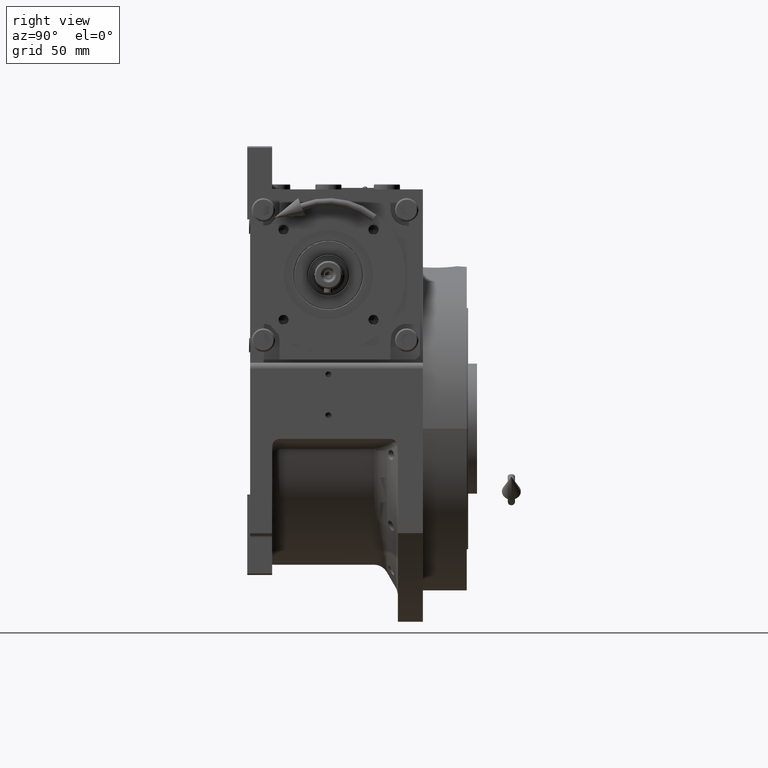
[diagram: clean part render]
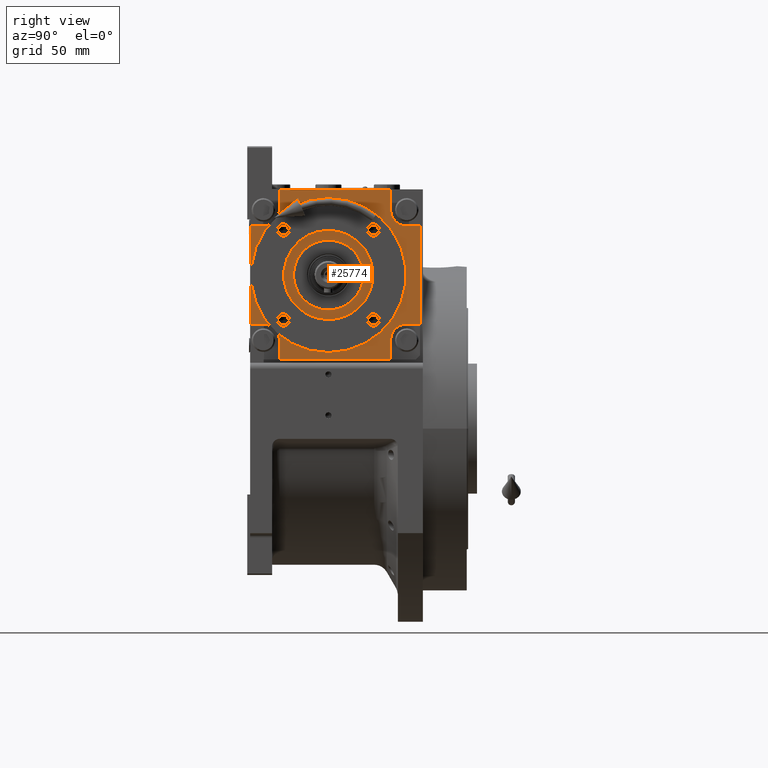
[diagram: same view with one face highlighted and labeled with its STEP entity id]
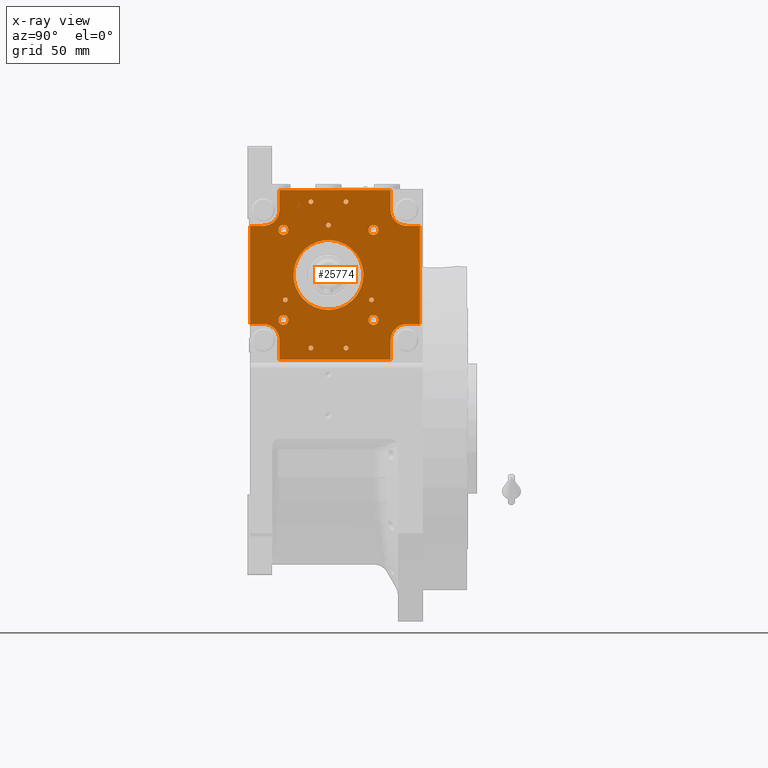
[diagram: x-ray of the same camera — body ghosted, the highlighted face saturated]
A machine part, right view. The second image highlights one B-rep face of the part: STEP entity #25774.
The next image is the same camera in x-ray: the body ghosted, the highlighted face saturated — about 0% of this face is hidden behind the body in this view.
In plain terms, the highlighted planar face has unit normal (-1, 0, 0).
Its self-contained STEP definition (entity closure, byte-faithful):
#506 = ORIENTED_EDGE ( 'NONE', *, *, #31079, .F. ) ;
#508 = EDGE_CURVE ( 'NONE', #3402, #8271, #52353, .T. ) ;
#667 = CARTESIAN_POINT ( 'NONE',  ( 30.75914498161629496, -16.00000000000052935, 30.75914498161568034 ) ) ;
#764 = EDGE_CURVE ( 'NONE', #5807, #63217, #19924, .T. ) ;
#860 = CIRCLE ( 'NONE', #40134, 1.649999999999998579 ) ;
#929 = EDGE_LOOP ( 'NONE', ( #28091, #64346 ) ) ;
#1064 = EDGE_CURVE ( 'NONE', #11696, #58567, #54721, .T. ) ;
#1093 = ORIENTED_EDGE ( 'NONE', *, *, #45163, .F. ) ;
#1099 = EDGE_LOOP ( 'NONE', ( #65953, #33694 ) ) ;
#1154 = FACE_BOUND ( 'NONE', #68655, .T. ) ;
#1180 = CARTESIAN_POINT ( 'NONE',  ( -14.56080651967272743, -15.99999999999968736, 18.97164043556306012 ) ) ;
#1211 = DIRECTION ( 'NONE',  ( 2.320366121466569596E-14, -1.000000000000000000, -1.221245327087611452E-15 ) ) ;
#1273 = CARTESIAN_POINT ( 'NONE',  ( -10.34999999999789466, -15.99999999999997335, 49.99999999999958789 ) ) ;
#1508 = DIRECTION ( 'NONE',  ( -1.000000000000000000, 2.312964634635742267E-14, -3.364312195833806761E-14 ) ) ;
#1527 = CARTESIAN_POINT ( 'NONE',  ( 1.566381472650238749, -16.00000000000006040, 23.86395783780504942 ) ) ;
#1547 = CARTESIAN_POINT ( 'NONE',  ( 53.49999999999916866, -16.00000000000105516, -33.49999999999730704 ) ) ;
#1860 = CARTESIAN_POINT ( 'NONE',  ( -23.63839498590282417, -15.99999999999945288, 3.312268357112897466 ) ) ;
#2015 = CIRCLE ( 'NONE', #41287, 1.650000000000000355 ) ;
#2060 = VERTEX_POINT ( 'NONE', #45829 ) ;
#2219 = CARTESIAN_POINT ( 'NONE',  ( -7.684686402434363295, -15.99999999999985434, 22.64704931693656320 ) ) ;
#2410 = AXIS2_PLACEMENT_3D ( 'NONE', #41151, #62232, #51336 ) ;
#2427 = DIRECTION ( 'NONE',  ( -1.000000000000000000, 2.346978820439211900E-14, -3.265361837132816584E-14 ) ) ;
#2507 = EDGE_LOOP ( 'NONE', ( #20204, #43611, #4186 ) ) ;
#2560 = CARTESIAN_POINT ( 'NONE',  ( 17.98238473184901309, -16.00000000000043698, 15.76636065876123638 ) ) ;
#2581 = VECTOR ( 'NONE', #41155, 1000.000000000000000 ) ;
#2713 = ORIENTED_EDGE ( 'NONE', *, *, #8965, .T. ) ;
#2714 = CARTESIAN_POINT ( 'NONE',  ( 23.54567843359673418, -16.00000000000054712, -3.888439885455164280 ) ) ;
#2945 = VERTEX_POINT ( 'NONE', #19310 ) ;
#3003 = EDGE_LOOP ( 'NONE', ( #42315, #55996 ) ) ;
#3139 = CARTESIAN_POINT ( 'NONE',  ( 31.09486372867084825, -16.00000000000052935, -16.99999999999864286 ) ) ;
#3162 = EDGE_CURVE ( 'NONE', #8480, #41226, #19487, .T. ) ;
#3219 = B_SPLINE_CURVE_WITH_KNOTS ( 'NONE', 3,
 ( #43328, #5071, #42993, #22248, #64092, #11716, #20870, #15963, #43692, #16999, #64422, #58808, #42305, #15627, #26506, #32101, #37036, #16286, #58478, #53886, #37701, #59140 ),
 .UNSPECIFIED., .F., .F.,
 ( 4, 2, 2, 2, 2, 2, 2, 1, 1, 2, 2, 4 ),
 ( 0.5000001158929844314, 0.5625001014063614191, 0.6250000869197384068, 0.6875000724331152835, 0.7500000579464922712, 0.8125000434598691479, 0.8750000289732461356, 0.9062500217299345184, 0.9218750181082788764, 0.9296875162974509443, 0.9375000144866230123, 1.000000000000000000 ),
 .UNSPECIFIED. ) ;
#3402 = VERTEX_POINT ( 'NONE', #33506 ) ;
#3639 = VECTOR ( 'NONE', #32745, 1000.000000000000000 ) ;
#3668 = CIRCLE ( 'NONE', #59601, 1.649999999999998579 ) ;
#3751 = CARTESIAN_POINT ( 'NONE',  ( 42.50000000000225242, -16.00000000000063949, 58.00000000000208900 ) ) ;
#3772 = CARTESIAN_POINT ( 'NONE',  ( 3.118976708678669052, -16.00000000000004619, -23.71104291446139456 ) ) ;
#3849 = CARTESIAN_POINT ( 'NONE',  ( -11.99999999999789502, -15.99999999999998579, 49.99999999999958789 ) ) ;
#4032 = CARTESIAN_POINT ( 'NONE',  ( -7.443936863012387801E-10, -16.00000080169985139, -23.86393912775695725 ) ) ;
#4035 = VECTOR ( 'NONE', #67765, 1000.000000000000000 ) ;
#4047 = ORIENTED_EDGE ( 'NONE', *, *, #22902, .F. ) ;
#4075 = LINE ( 'NONE', #14622, #4808 ) ;
#4186 = ORIENTED_EDGE ( 'NONE', *, *, #18012, .T. ) ;
#4375 = CIRCLE ( 'NONE', #36844, 1.650000000000000355 ) ;
#4605 = CARTESIAN_POINT ( 'NONE',  ( -53.50000000000083134, -15.99999999999893241, -33.50000000000168399 ) ) ;
#4719 = AXIS2_PLACEMENT_3D ( 'NONE', #3849, #46671, #14729 ) ;
#4808 = VECTOR ( 'NONE', #52543, 1000.000000000000000 ) ;
#4926 = EDGE_CURVE ( 'NONE', #51191, #34077, #62412, .T. ) ;
#5051 = VERTEX_POINT ( 'NONE', #5088 ) ;
#5071 = CARTESIAN_POINT ( 'NONE',  ( -1.566389769414687105, -15.99999999999994138, -23.86395727102645736 ) ) ;
#5088 = CARTESIAN_POINT ( 'NONE',  ( -27.35914498161529451, -15.99999999999905675, -30.75914498161485966 ) ) ;
#5124 = CARTESIAN_POINT ( 'NONE',  ( -53.50000000000083134, -15.99999999999893241, -33.50000000000168399 ) ) ;
#5341 = DIRECTION ( 'NONE',  ( -1.000000000000000000, 2.312964634635742267E-14, -3.364312195833806761E-14 ) ) ;
#5620 = CARTESIAN_POINT ( 'NONE',  ( -27.35914498161335828, -15.99999999999947242, 30.75914498161398569 ) ) ;
#5742 = CARTESIAN_POINT ( 'NONE',  ( -30.75914498161336041, -15.99999999999947242, 30.75914498161395727 ) ) ;
#5807 = VERTEX_POINT ( 'NONE', #5620 ) ;
#5922 = AXIS2_PLACEMENT_3D ( 'NONE', #5742, #21530, #17305 ) ;
#6074 = FACE_BOUND ( 'NONE', #3003, .T. ) ;
#6216 = CARTESIAN_POINT ( 'NONE',  ( -34.15914498161563273, -15.99999999999852918, -30.75914498161649746 ) ) ;
#6446 = AXIS2_PLACEMENT_3D ( 'NONE', #12814, #28969, #50393 ) ;
#6450 = CARTESIAN_POINT ( 'NONE',  ( -17.98191327638511083, -15.99999999999960743, 15.76671743174190610 ) ) ;
#6784 = FACE_BOUND ( 'NONE', #29132, .T. ) ;
#6807 = CARTESIAN_POINT ( 'NONE',  ( 21.44851027164581936, -16.00000000000050449, 10.57829038497925112 ) ) ;
#6872 = CIRCLE ( 'NONE', #2410, 10.99999999999999645 ) ;
#6941 = AXIS2_PLACEMENT_3D ( 'NONE', #67993, #46908, #19846 ) ;
#7144 = CARTESIAN_POINT ( 'NONE',  ( 18.97154522141289945, -16.00000000000045830, 14.56102996679602413 ) ) ;
#7442 = DIRECTION ( 'NONE',  ( -1.000000000000000000, 2.346978820439209376E-14, -3.265361837132812797E-14 ) ) ;
#7477 = CARTESIAN_POINT ( 'NONE',  ( -10.58016068106818786, -15.99999999999978151, 21.44772903399613284 ) ) ;
#7688 = CARTESIAN_POINT ( 'NONE',  ( -30.75914498161529309, -15.99999999999905675, -30.75914498161649746 ) ) ;
#7826 = CARTESIAN_POINT ( 'NONE',  ( -20.71237213299974655, -15.99999999999953459, 11.95537536735847794 ) ) ;
#8153 = DIRECTION ( 'NONE',  ( 2.320366121466569596E-14, -1.000000000000000000, -1.221245327087611452E-15 ) ) ;
#8271 = VERTEX_POINT ( 'NONE', #27807 ) ;
#8285 = CARTESIAN_POINT ( 'NONE',  ( 1.507460822836030482E-12, -15.99999999999998579, 34.00000000000001421 ) ) ;
#8459 = CARTESIAN_POINT ( 'NONE',  ( 30.75914498161435873, -16.00000000000011013, -30.75914498161424859 ) ) ;
#8480 = VERTEX_POINT ( 'NONE', #33897 ) ;
#8756 = AXIS2_PLACEMENT_3D ( 'NONE', #10390, #14626, #36048 ) ;
#8844 = ORIENTED_EDGE ( 'NONE', *, *, #49577, .F. ) ;
#8876 = CARTESIAN_POINT ( 'NONE',  ( -30.75914498161529309, -15.99999999999905675, -30.75914498161649746 ) ) ;
#8965 = EDGE_CURVE ( 'NONE', #17217, #28967, #6872, .T. ) ;
#9039 = CARTESIAN_POINT ( 'NONE',  ( -7.443936863012387801E-10, -16.00000080169985139, -23.86393912775695725 ) ) ;
#9354 = ORIENTED_EDGE ( 'NONE', *, *, #16498, .F. ) ;
#9511 = DIRECTION ( 'NONE',  ( 1.000000000000000000, -2.346978820439211900E-14, 3.367404394543216964E-14 ) ) ;
#9522 = CARTESIAN_POINT ( 'NONE',  ( -13.65000000000131486, -15.99999999999947242, -49.99999999999977973 ) ) ;
#9662 = VERTEX_POINT ( 'NONE', #21024 ) ;
#10390 = CARTESIAN_POINT ( 'NONE',  ( 30.75914498161629496, -16.00000000000052935, 30.75914498161568034 ) ) ;
#10786 = VERTEX_POINT ( 'NONE', #50225 ) ;
#10951 = EDGE_CURVE ( 'NONE', #31329, #36345, #67785, .T. ) ;
#11004 = FACE_BOUND ( 'NONE', #1099, .T. ) ;
#11696 = VERTEX_POINT ( 'NONE', #37450 ) ;
#11707 = CARTESIAN_POINT ( 'NONE',  ( -11.95559462097993375, -15.99999999999974776, 20.71256030924635283 ) ) ;
#11716 = CARTESIAN_POINT ( 'NONE',  ( -10.57970342709663925, -15.99999999999972999, -21.44798703624194047 ) ) ;
#11937 = CARTESIAN_POINT ( 'NONE',  ( -27.79486372867094701, -15.99999999999947242, -17.00000000000084910 ) ) ;
#11977 = DIRECTION ( 'NONE',  ( 1.000000000000000000, -2.312964634635742267E-14, 3.364312195833806761E-14 ) ) ;
#11996 = VERTEX_POINT ( 'NONE', #4032 ) ;
#12031 = FACE_BOUND ( 'NONE', #40337, .T. ) ;
#12115 = DIRECTION ( 'NONE',  ( 2.320366121466569596E-14, -1.000000000000000000, -1.221245327087611452E-15 ) ) ;
#12168 = VECTOR ( 'NONE', #57906, 1000.000000000000000 ) ;
#12194 = VERTEX_POINT ( 'NONE', #42987 ) ;
#12410 = EDGE_LOOP ( 'NONE', ( #68583, #506 ) ) ;
#12420 = CARTESIAN_POINT ( 'NONE',  ( -23.47914610411905301, -15.99999999999945999, 4.271807850601716972 ) ) ;
#12744 = DIRECTION ( 'NONE',  ( 2.320366121466569596E-14, -1.000000000000000000, -1.221245327087611452E-15 ) ) ;
#12759 = CARTESIAN_POINT ( 'NONE',  ( 23.36750599776914683, -16.00000000000055067, 4.844962327507791322 ) ) ;
#12814 = CARTESIAN_POINT ( 'NONE',  ( -30.75914498161336041, -15.99999999999947242, 30.75914498161395727 ) ) ;
#13021 = AXIS2_PLACEMENT_3D ( 'NONE', #8285, #13203, #29698 ) ;
#13146 = CIRCLE ( 'NONE', #18752, 1.649999999999998579 ) ;
#13203 = DIRECTION ( 'NONE',  ( 2.320366121466569596E-14, -1.000000000000000000, -1.221245327087611452E-15 ) ) ;
#13651 = ORIENTED_EDGE ( 'NONE', *, *, #23307, .F. ) ;
#13687 = CARTESIAN_POINT ( 'NONE',  ( 42.49999999999828049, -16.00000000000052935, -57.99999999999759837 ) ) ;
#13822 = B_SPLINE_CURVE_WITH_KNOTS ( 'NONE', 3,
 ( #25199, #57502, #36071, #18870, #2714, #45909, #41692, #30796, #62413, #24127, #19219, #57161, #41351, #66982, #40651, #40303, #67697, #35026, #52208, #3772, #62079, #9039 ),
 .UNSPECIFIED., .F., .F.,
 ( 4, 1, 1, 2, 2, 2, 2, 2, 2, 2, 2, 4 ),
 ( 0.000000000000000000, 0.03125000724331147145, 0.04687501086496721064, 0.05468751267579508718, 0.06250001448662295678, 0.1250000289732460246, 0.1875000434598690924, 0.2500000579464921602, 0.3125000724331152280, 0.3750000869197382403, 0.4375001014063613081, 0.5000001158929844314 ),
 .UNSPECIFIED. ) ;
#14152 = ORIENTED_EDGE ( 'NONE', *, *, #52336, .T. ) ;
#14472 = CARTESIAN_POINT ( 'NONE',  ( -33.49999999999775468, -15.99999999999852918, 57.99999999999892708 ) ) ;
#14622 = CARTESIAN_POINT ( 'NONE',  ( 62.50000000000094502, -16.00000000000157030, 33.50000000000126477 ) ) ;
#14626 = DIRECTION ( 'NONE',  ( 2.320366121466569596E-14, -1.000000000000000000, -1.221245327087611452E-15 ) ) ;
#14729 = DIRECTION ( 'NONE',  ( 1.000000000000000000, -2.312964634635742267E-14, 3.364312195833806761E-14 ) ) ;
#15053 = EDGE_CURVE ( 'NONE', #9662, #41793, #54795, .T. ) ;
#15107 = CARTESIAN_POINT ( 'NONE',  ( 10.34999999999868514, -16.00000000000000000, -49.99999999999943157 ) ) ;
#15627 = CARTESIAN_POINT ( 'NONE',  ( -22.34692774506246238, -15.99999999999947597, -8.409641594889036398 ) ) ;
#15651 = EDGE_CURVE ( 'NONE', #56420, #31560, #52275, .T. ) ;
#15834 = EDGE_LOOP ( 'NONE', ( #45658, #65211 ) ) ;
#15963 = CARTESIAN_POINT ( 'NONE',  ( -14.56100406771642319, -15.99999999999963940, -18.97158716134886802 ) ) ;
#15977 = ORIENTED_EDGE ( 'NONE', *, *, #15651, .F. ) ;
#16286 = CARTESIAN_POINT ( 'NONE',  ( -23.32660352079502530, -15.99999999999944933, -5.038296638456548848 ) ) ;
#16498 = EDGE_CURVE ( 'NONE', #51337, #19336, #13146, .T. ) ;
#16930 = CARTESIAN_POINT ( 'NONE',  ( 42.49999999999828049, -16.00000000000052935, -57.99999999999759837 ) ) ;
#16961 = DIRECTION ( 'NONE',  ( 2.320366121466574330E-14, 1.000000000000000000, 1.221245327089162353E-15 ) ) ;
#16999 = CARTESIAN_POINT ( 'NONE',  ( -17.98238733659842836, -15.99999999999956302, -15.76635765307155346 ) ) ;
#17037 = VERTEX_POINT ( 'NONE', #66644 ) ;
#17217 = VERTEX_POINT ( 'NONE', #41358 ) ;
#17305 = DIRECTION ( 'NONE',  ( -1.000000000000000000, 2.346978820439211900E-14, -3.367404394543216964E-14 ) ) ;
#17327 = CARTESIAN_POINT ( 'NONE',  ( 20.71289917946465664, -16.00000000000049383, 11.95468967782841574 ) ) ;
#17640 = B_SPLINE_CURVE_WITH_KNOTS ( 'NONE', 3,
 ( #23293, #66489, #23976, #1860, #55257, #12420, #18369, #66827, #33135, #22591, #7826, #55597, #6450, #60876, #1180, #11707, #7477, #2219, #55950, #65798, #39789, #1527, #34180, #29252, #33845, #49977, #45392, #50666, #54909, #2560, #7144, #17327, #6807, #28230, #49634, #17675, #28902, #44716, #12759, #50323, #61212, #59830 ),
 .UNSPECIFIED., .F., .F.,
 ( 4, 1, 1, 2, 2, 2, 2, 2, 2, 2, 2, 2, 2, 2, 2, 2, 2, 2, 1, 1, 2, 2, 4 ),
 ( 0.000000000000000000, 0.03124999999999992367, 0.04687499999999988204, 0.05468749999999986816, 0.06249999999999987510, 0.1249999999999998612, 0.1874999999999998612, 0.2499999999999998890, 0.3124999999999998890, 0.3749999999999998890, 0.4374999999999999445, 0.4999999999999998890, 0.5624999999999998890, 0.6249999999999997780, 0.6874999999999997780, 0.7499999999999996669, 0.8124999999999996669, 0.8749999999999996669, 0.9062499999999995559, 0.9218749999999995559, 0.9296874999999995559, 0.9374999999999994449, 1.000000000000000000 ),
 .UNSPECIFIED. ) ;
#17660 = VECTOR ( 'NONE', #67493, 1000.000000000000000 ) ;
#17675 = CARTESIAN_POINT ( 'NONE',  ( 23.10538455811062519, -16.00000000000053646, 5.991162440384175447 ) ) ;
#17706 = DIRECTION ( 'NONE',  ( 1.000000000000000000, -2.312964634635742898E-14, 3.364312195833808023E-14 ) ) ;
#17906 = ORIENTED_EDGE ( 'NONE', *, *, #41571, .F. ) ;
#18012 = EDGE_CURVE ( 'NONE', #24852, #27389, #17640, .T. ) ;
#18369 = CARTESIAN_POINT ( 'NONE',  ( -23.44380748082615185, -15.99999999999945643, 4.461670308972140120 ) ) ;
#18376 = CIRCLE ( 'NONE', #20572, 1.650000000000000355 ) ;
#18619 = VERTEX_POINT ( 'NONE', #1273 ) ;
#18658 = AXIS2_PLACEMENT_3D ( 'NONE', #33477, #8153, #65776 ) ;
#18688 = VERTEX_POINT ( 'NONE', #58883 ) ;
#18752 = AXIS2_PLACEMENT_3D ( 'NONE', #31385, #52451, #37321 ) ;
#18870 = CARTESIAN_POINT ( 'NONE',  ( 23.63839488218219032, -16.00000000000055067, -3.312269116782482925 ) ) ;
#19058 = EDGE_CURVE ( 'NONE', #11996, #24852, #3219, .T. ) ;
#19219 = CARTESIAN_POINT ( 'NONE',  ( 20.71237068519117130, -16.00000000000046541, -11.95537791738215816 ) ) ;
#19310 = CARTESIAN_POINT ( 'NONE',  ( 13.65000000000210711, -16.00000000000051514, 50.00000000000019895 ) ) ;
#19336 = VERTEX_POINT ( 'NONE', #29947 ) ;
#19487 = LINE ( 'NONE', #46195, #34394 ) ;
#19530 = LINE ( 'NONE', #3751, #69292 ) ;
#19572 = EDGE_CURVE ( 'NONE', #2945, #12194, #2015, .T. ) ;
#19846 = DIRECTION ( 'NONE',  ( -1.000000000000000000, 2.312964634635742267E-14, -3.364312195833806761E-14 ) ) ;
#19924 = CIRCLE ( 'NONE', #6446, 3.400000000000000355 ) ;
#20204 = ORIENTED_EDGE ( 'NONE', *, *, #40927, .T. ) ;
#20411 = VERTEX_POINT ( 'NONE', #1547 ) ;
#20572 = AXIS2_PLACEMENT_3D ( 'NONE', #68130, #41776, #63207 ) ;
#20592 = LINE ( 'NONE', #5124, #35116 ) ;
#20870 = CARTESIAN_POINT ( 'NONE',  ( -11.95537273863652494, -15.99999999999969447, -20.71261660057514220 ) ) ;
#21024 = CARTESIAN_POINT ( 'NONE',  ( 34.15914498161615853, -16.00000000000105516, 30.75914498161568034 ) ) ;
#21530 = DIRECTION ( 'NONE',  ( 2.320366121466569596E-14, -1.000000000000000000, -1.221245327087611452E-15 ) ) ;
#21628 = CARTESIAN_POINT ( 'NONE',  ( -29.44486372867094914, -15.99999999999947242, -17.00000000000083489 ) ) ;
#21796 = ORIENTED_EDGE ( 'NONE', *, *, #68704, .F. ) ;
#22248 = CARTESIAN_POINT ( 'NONE',  ( -6.191738417274751605, -15.99999999999982947, -23.09992920858579524 ) ) ;
#22507 = EDGE_CURVE ( 'NONE', #12194, #2945, #33866, .T. ) ;
#22567 = FACE_BOUND ( 'NONE', #929, .T. ) ;
#22591 = CARTESIAN_POINT ( 'NONE',  ( -21.44831461998343514, -15.99999999999951861, 10.57896503445245528 ) ) ;
#22902 = EDGE_CURVE ( 'NONE', #31329, #25411, #38007, .T. ) ;
#23146 = CARTESIAN_POINT ( 'NONE',  ( -13.64999999999789537, -15.99999999999998579, 49.99999999999958789 ) ) ;
#23293 = CARTESIAN_POINT ( 'NONE',  ( -23.86396582665310007, -16.00000160339942568, -1.643628427805410297E-07 ) ) ;
#23307 = EDGE_CURVE ( 'NONE', #34128, #10786, #32805, .T. ) ;
#23308 = CARTESIAN_POINT ( 'NONE',  ( 53.49999999999869260, -16.00000000000105516, -44.49999999999758415 ) ) ;
#23749 = AXIS2_PLACEMENT_3D ( 'NONE', #24141, #23816, #29079 ) ;
#23816 = DIRECTION ( 'NONE',  ( 2.320366121466569596E-14, -1.000000000000000000, -1.221245327087611452E-15 ) ) ;
#23976 = CARTESIAN_POINT ( 'NONE',  ( -23.80515710797186202, -15.99999999999945288, 1.960048708334747980 ) ) ;
#24041 = LINE ( 'NONE', #45446, #52888 ) ;
#24127 = CARTESIAN_POINT ( 'NONE',  ( 21.44831352185214968, -16.00000000000049027, -10.57896731516752098 ) ) ;
#24141 = CARTESIAN_POINT ( 'NONE',  ( 11.99999999999868550, -16.00000000000000000, -49.99999999999969447 ) ) ;
#24508 = VERTEX_POINT ( 'NONE', #51677 ) ;
#24547 = DIRECTION ( 'NONE',  ( 2.320366121466569596E-14, -1.000000000000000000, -1.221245327087611452E-15 ) ) ;
#24852 = VERTEX_POINT ( 'NONE', #28328 ) ;
#24880 = AXIS2_PLACEMENT_3D ( 'NONE', #33194, #44777, #54608 ) ;
#25199 = CARTESIAN_POINT ( 'NONE',  ( 23.86396582665410193, -16.00000160340048083, 1.643624264469067953E-07 ) ) ;
#25325 = DIRECTION ( 'NONE',  ( 2.320366121466569596E-14, -1.000000000000000000, -1.221245327087611452E-15 ) ) ;
#25363 = EDGE_LOOP ( 'NONE', ( #13651, #8844 ) ) ;
#25411 = VERTEX_POINT ( 'NONE', #45811 ) ;
#25647 = AXIS2_PLACEMENT_3D ( 'NONE', #39138, #1211, #17706 ) ;
#25769 = AXIS2_PLACEMENT_3D ( 'NONE', #68923, #58730, #5341 ) ;
#25774 = ADVANCED_FACE ( 'NONE', ( #11004, #32068, #6784, #1154, #12031, #64057, #6074, #33474, #27492, #32434, #49611, #38711, #22567 ), #28206, .F. ) ;
#25775 = CARTESIAN_POINT ( 'NONE',  ( 42.49999999999869971, -16.00000000000052935, -44.49999999999758415 ) ) ;
#25782 = EDGE_CURVE ( 'NONE', #63217, #5807, #39563, .T. ) ;
#25902 = DIRECTION ( 'NONE',  ( 2.320366121466569596E-14, -1.000000000000000000, -1.221245327087611452E-15 ) ) ;
#25976 = CARTESIAN_POINT ( 'NONE',  ( -53.50000000000083134, -15.99999999999893241, -33.50000000000168399 ) ) ;
#26034 = DIRECTION ( 'NONE',  ( 1.000000000000000000, -2.346978820439211900E-14, 3.265361837132816584E-14 ) ) ;
#26106 = AXIS2_PLACEMENT_3D ( 'NONE', #8459, #25325, #9511 ) ;
#26506 = CARTESIAN_POINT ( 'NONE',  ( -22.74128642149523571, -15.99999999999946176, -7.307672354702617667 ) ) ;
#26983 = EDGE_CURVE ( 'NONE', #25411, #2060, #32791, .T. ) ;
#27389 = VERTEX_POINT ( 'NONE', #27424 ) ;
#27424 = CARTESIAN_POINT ( 'NONE',  ( 23.86396582665410193, -16.00000160340048083, 1.643624264469067953E-07 ) ) ;
#27492 = FACE_BOUND ( 'NONE', #2507, .T. ) ;
#27807 = CARTESIAN_POINT ( 'NONE',  ( -44.49999999999863576, -15.99999999999893241, 33.49999999999874234 ) ) ;
#27859 = CARTESIAN_POINT ( 'NONE',  ( -11.99999999999789502, -15.99999999999998579, 49.99999999999958789 ) ) ;
#28091 = ORIENTED_EDGE ( 'NONE', *, *, #764, .F. ) ;
#28206 = PLANE ( 'NONE',  #60881 ) ;
#28230 = CARTESIAN_POINT ( 'NONE',  ( 22.34692704931729423, -16.00000000000053291, 8.409643459811425359 ) ) ;
#28328 = CARTESIAN_POINT ( 'NONE',  ( -23.86396582665310007, -16.00000160339942568, -1.643628427805410297E-07 ) ) ;
#28776 = CIRCLE ( 'NONE', #43370, 11.00000000000000355 ) ;
#28895 = ORIENTED_EDGE ( 'NONE', *, *, #22507, .F. ) ;
#28902 = CARTESIAN_POINT ( 'NONE',  ( 23.24085826302126279, -16.00000000000054712, 5.420325951971772582 ) ) ;
#28967 = VERTEX_POINT ( 'NONE', #68838 ) ;
#28969 = DIRECTION ( 'NONE',  ( 2.320366121466569596E-14, -1.000000000000000000, -1.221245327087611452E-15 ) ) ;
#29079 = DIRECTION ( 'NONE',  ( -1.000000000000000000, 2.312964634635742267E-14, -3.364312195833806761E-14 ) ) ;
#29132 = EDGE_LOOP ( 'NONE', ( #33226, #28895 ) ) ;
#29244 = EDGE_CURVE ( 'NONE', #29687, #5051, #69275, .T. ) ;
#29252 = CARTESIAN_POINT ( 'NONE',  ( 6.191731438649977548, -16.00000000000017408, 23.09993110230251290 ) ) ;
#29266 = DIRECTION ( 'NONE',  ( -1.000000000000000000, 2.333991585859703374E-14, -3.343285244609845023E-14 ) ) ;
#29626 = VECTOR ( 'NONE', #43670, 1000.000000000000000 ) ;
#29687 = VERTEX_POINT ( 'NONE', #6216 ) ;
#29698 = DIRECTION ( 'NONE',  ( -1.000000000000000000, 2.312964634635742898E-14, -3.364312195833808023E-14 ) ) ;
#29947 = CARTESIAN_POINT ( 'NONE',  ( -31.09486372867094772, -15.99999999999947242, -17.00000000000083489 ) ) ;
#30264 = CIRCLE ( 'NONE', #25769, 1.650000000000000355 ) ;
#30796 = CARTESIAN_POINT ( 'NONE',  ( 23.09932167976561956, -16.00000000000052580, -6.193173079706989270 ) ) ;
#30913 = DIRECTION ( 'NONE',  ( 1.000000000000000000, -2.333991585859704951E-14, 3.343285244609847548E-14 ) ) ;
#31072 = CIRCLE ( 'NONE', #37814, 10.99999999999999645 ) ;
#31079 = EDGE_CURVE ( 'NONE', #41793, #9662, #59179, .T. ) ;
#31112 = ORIENTED_EDGE ( 'NONE', *, *, #52089, .T. ) ;
#31127 = DIRECTION ( 'NONE',  ( -3.341771304121716138E-14, -1.221245327087032231E-15, -1.000000000000000000 ) ) ;
#31251 = EDGE_CURVE ( 'NONE', #31560, #56420, #860, .T. ) ;
#31329 = VERTEX_POINT ( 'NONE', #66210 ) ;
#31385 = CARTESIAN_POINT ( 'NONE',  ( -29.44486372867094914, -15.99999999999947242, -17.00000000000083489 ) ) ;
#31485 = ORIENTED_EDGE ( 'NONE', *, *, #26983, .F. ) ;
#31560 = VERTEX_POINT ( 'NONE', #3139 ) ;
#31796 = EDGE_CURVE ( 'NONE', #64113, #20411, #48398, .T. ) ;
#31836 = DIRECTION ( 'NONE',  ( -1.000000000000000000, 2.312964634635744791E-14, -2.102695122396131513E-14 ) ) ;
#32068 = FACE_BOUND ( 'NONE', #15834, .T. ) ;
#32101 = CARTESIAN_POINT ( 'NONE',  ( -23.10538490748595564, -15.99999999999945999, -5.991161081151709311 ) ) ;
#32434 = FACE_BOUND ( 'NONE', #58852, .T. ) ;
#32745 = DIRECTION ( 'NONE',  ( -1.000000000000000000, 2.320366121466578432E-14, -3.341771304121721187E-14 ) ) ;
#32791 = LINE ( 'NONE', #38726, #29626 ) ;
#32805 = CIRCLE ( 'NONE', #26106, 3.399999999999996803 ) ;
#33135 = CARTESIAN_POINT ( 'NONE',  ( -22.64660340996053023, -15.99999999999948663, 7.686055968332452970 ) ) ;
#33187 = EDGE_CURVE ( 'NONE', #53756, #17037, #30264, .T. ) ;
#33194 = CARTESIAN_POINT ( 'NONE',  ( -44.50000000000130029, -15.99999999999841904, -44.50000000000188294 ) ) ;
#33226 = ORIENTED_EDGE ( 'NONE', *, *, #19572, .F. ) ;
#33474 = FACE_OUTER_BOUND ( 'NONE', #35891, .T. ) ;
#33477 = CARTESIAN_POINT ( 'NONE',  ( 11.99999999999868550, -16.00000000000000000, -49.99999999999969447 ) ) ;
#33506 = CARTESIAN_POINT ( 'NONE',  ( -53.49999999999863576, -15.99999999999893241, 33.49999999999832312 ) ) ;
#33549 = DIRECTION ( 'NONE',  ( 1.000000000000000000, -2.312964634635744791E-14, 3.364312195833810548E-14 ) ) ;
#33694 = ORIENTED_EDGE ( 'NONE', *, *, #48891, .F. ) ;
#33845 = CARTESIAN_POINT ( 'NONE',  ( 7.685113660205380448, -16.00000000000020606, 22.64679606098383147 ) ) ;
#33866 = CIRCLE ( 'NONE', #6941, 1.650000000000000355 ) ;
#33897 = CARTESIAN_POINT ( 'NONE',  ( -33.49999999999775468, -15.99999999999852918, 57.99999999999892708 ) ) ;
#34077 = VERTEX_POINT ( 'NONE', #57536 ) ;
#34128 = VERTEX_POINT ( 'NONE', #60285 ) ;
#34180 = CARTESIAN_POINT ( 'NONE',  ( 3.119568793585559163, -16.00000000000009948, 23.71085619315120852 ) ) ;
#34394 = VECTOR ( 'NONE', #61665, 1000.000000000000000 ) ;
#34881 = EDGE_CURVE ( 'NONE', #18688, #8271, #31072, .T. ) ;
#35026 = CARTESIAN_POINT ( 'NONE',  ( 7.684679902882765035, -16.00000000000014211, -22.64705154894211248 ) ) ;
#35116 = VECTOR ( 'NONE', #42018, 1000.000000000000000 ) ;
#35864 = ORIENTED_EDGE ( 'NONE', *, *, #34881, .T. ) ;
#35891 = EDGE_LOOP ( 'NONE', ( #51030, #14152, #35864, #45370, #35926, #31112, #65027, #31485, #4047, #53629, #62365, #52620, #21796, #64904, #2713, #17906 ) ) ;
#35926 = ORIENTED_EDGE ( 'NONE', *, *, #42504, .F. ) ;
#36048 = DIRECTION ( 'NONE',  ( -1.000000000000000000, 2.346978820439209376E-14, -3.367404394543213178E-14 ) ) ;
#36071 = CARTESIAN_POINT ( 'NONE',  ( 23.80515708120784879, -16.00000000000054712, -1.960049160637567622 ) ) ;
#36103 = EDGE_CURVE ( 'NONE', #34077, #51191, #50279, .T. ) ;
#36345 = VERTEX_POINT ( 'NONE', #25775 ) ;
#36530 = DIRECTION ( 'NONE',  ( 2.320366121466569596E-14, -1.000000000000000000, -1.221245327087611452E-15 ) ) ;
#36844 = AXIS2_PLACEMENT_3D ( 'NONE', #27859, #12744, #1508 ) ;
#37036 = CARTESIAN_POINT ( 'NONE',  ( -23.24085855080037888, -15.99999999999945643, -5.420324715344137623 ) ) ;
#37321 = DIRECTION ( 'NONE',  ( 1.000000000000000000, -2.312964634635744791E-14, 4.205390244792263027E-14 ) ) ;
#37450 = CARTESIAN_POINT ( 'NONE',  ( 13.64999999999868585, -16.00000000000000000, -49.99999999999969447 ) ) ;
#37701 = CARTESIAN_POINT ( 'NONE',  ( -23.86220687115079997, -15.99999999999944578, -1.575521332451157663 ) ) ;
#37779 = CARTESIAN_POINT ( 'NONE',  ( 27.79486372867084754, -16.00000000000052935, -16.99999999999957012 ) ) ;
#37814 = AXIS2_PLACEMENT_3D ( 'NONE', #61851, #57624, #30913 ) ;
#38007 = LINE ( 'NONE', #16930, #3639 ) ;
#38711 = FACE_BOUND ( 'NONE', #12410, .T. ) ;
#38726 = CARTESIAN_POINT ( 'NONE',  ( -33.50000000000171951, -15.99999999999894484, -58.00000000000163425 ) ) ;
#38788 = CARTESIAN_POINT ( 'NONE',  ( 29.44486372867084967, -16.00000000000052935, -16.99999999999905853 ) ) ;
#38980 = AXIS2_PLACEMENT_3D ( 'NONE', #7688, #24547, #2427 ) ;
#39138 = CARTESIAN_POINT ( 'NONE',  ( 1.507460822836030482E-12, -15.99999999999998579, 34.00000000000001421 ) ) ;
#39563 = CIRCLE ( 'NONE', #5922, 3.399999999999996803 ) ;
#39789 = CARTESIAN_POINT ( 'NONE',  ( -1.566398898388478012, -15.99999999999999289, 23.86388698433314559 ) ) ;
#39849 = EDGE_CURVE ( 'NONE', #24508, #2060, #67486, .T. ) ;
#40027 = EDGE_CURVE ( 'NONE', #65610, #17217, #24041, .T. ) ;
#40134 = AXIS2_PLACEMENT_3D ( 'NONE', #38788, #12115, #33549 ) ;
#40303 = CARTESIAN_POINT ( 'NONE',  ( 11.95558962178060547, -16.00000000000025224, -20.71256322365483271 ) ) ;
#40337 = EDGE_LOOP ( 'NONE', ( #9354, #54596 ) ) ;
#40518 = EDGE_CURVE ( 'NONE', #18619, #61403, #44014, .T. ) ;
#40651 = CARTESIAN_POINT ( 'NONE',  ( 14.56080246109949883, -16.00000000000031974, -18.97164357396547629 ) ) ;
#40927 = EDGE_CURVE ( 'NONE', #27389, #11996, #13822, .T. ) ;
#41019 = EDGE_CURVE ( 'NONE', #19336, #51337, #3668, .T. ) ;
#41042 = VECTOR ( 'NONE', #62519, 1000.000000000000000 ) ;
#41151 = CARTESIAN_POINT ( 'NONE',  ( 53.50000000000183320, -16.00000000000104095, 44.50000000000230216 ) ) ;
#41155 = DIRECTION ( 'NONE',  ( -3.341771304121716138E-14, -1.221245327087032231E-15, -1.000000000000000000 ) ) ;
#41226 = VERTEX_POINT ( 'NONE', #60613 ) ;
#41287 = AXIS2_PLACEMENT_3D ( 'NONE', #54467, #44286, #11977 ) ;
#41351 = CARTESIAN_POINT ( 'NONE',  ( 17.98191063435376691, -16.00000000000039435, -15.76672047504074037 ) ) ;
#41358 = CARTESIAN_POINT ( 'NONE',  ( 53.50000000000135714, -16.00000000000104095, 33.50000000000231637 ) ) ;
#41571 = EDGE_CURVE ( 'NONE', #41226, #28967, #19530, .T. ) ;
#41692 = CARTESIAN_POINT ( 'NONE',  ( 23.44380728526502367, -16.00000000000054001, -4.461671337288355410 ) ) ;
#41776 = DIRECTION ( 'NONE',  ( 2.320366121466569596E-14, -1.000000000000000000, -1.221245327087611452E-15 ) ) ;
#41793 = VERTEX_POINT ( 'NONE', #50634 ) ;
#42018 = DIRECTION ( 'NONE',  ( 1.000000000000000000, -2.320366121466578432E-14, 3.341771304121721187E-14 ) ) ;
#42305 = CARTESIAN_POINT ( 'NONE',  ( -21.44851137903782146, -15.99999999999949374, -10.57828808288077838 ) ) ;
#42315 = ORIENTED_EDGE ( 'NONE', *, *, #36103, .F. ) ;
#42478 = ORIENTED_EDGE ( 'NONE', *, *, #40518, .F. ) ;
#42504 = EDGE_CURVE ( 'NONE', #61218, #3402, #47030, .T. ) ;
#42534 = CARTESIAN_POINT ( 'NONE',  ( -1.649999999998495115, -15.99999999999998579, 33.99999999999998579 ) ) ;
#42987 = CARTESIAN_POINT ( 'NONE',  ( 10.35000000000210640, -16.00000000000051514, 50.00000000000022737 ) ) ;
#42993 = CARTESIAN_POINT ( 'NONE',  ( -3.119576768726713745, -15.99999999999989697, -23.71085511318445072 ) ) ;
#43328 = CARTESIAN_POINT ( 'NONE',  ( -7.443936863012387801E-10, -16.00000080169985139, -23.86393912775695725 ) ) ;
#43370 = AXIS2_PLACEMENT_3D ( 'NONE', #23308, #46120, #29266 ) ;
#43611 = ORIENTED_EDGE ( 'NONE', *, *, #19058, .T. ) ;
#43670 = DIRECTION ( 'NONE',  ( 3.341771304121716138E-14, 1.221245327087032231E-15, 1.000000000000000000 ) ) ;
#43692 = CARTESIAN_POINT ( 'NONE',  ( -15.76649213703013075, -15.99999999999961098, -17.98225022241957660 ) ) ;
#44014 = CIRCLE ( 'NONE', #4719, 1.650000000000000355 ) ;
#44286 = DIRECTION ( 'NONE',  ( 2.320366121466569596E-14, -1.000000000000000000, -1.221245327087611452E-15 ) ) ;
#44716 = CARTESIAN_POINT ( 'NONE',  ( 23.32660327196132144, -16.00000000000055067, 5.038297792665021646 ) ) ;
#44777 = DIRECTION ( 'NONE',  ( -2.320366121466569596E-14, 1.000000000000000000, 1.221245327087611452E-15 ) ) ;
#45163 = EDGE_CURVE ( 'NONE', #5051, #29687, #69418, .T. ) ;
#45370 = ORIENTED_EDGE ( 'NONE', *, *, #508, .F. ) ;
#45392 = CARTESIAN_POINT ( 'NONE',  ( 11.95536768126291527, -16.00000000000030553, 20.71261955372758479 ) ) ;
#45446 = CARTESIAN_POINT ( 'NONE',  ( 62.50000000000094502, -16.00000000000157030, 33.50000000000126477 ) ) ;
#45658 = ORIENTED_EDGE ( 'NONE', *, *, #52803, .F. ) ;
#45811 = CARTESIAN_POINT ( 'NONE',  ( -33.50000000000171951, -15.99999999999894484, -58.00000000000163425 ) ) ;
#45816 = AXIS2_PLACEMENT_3D ( 'NONE', #667, #36530, #26034 ) ;
#45829 = CARTESIAN_POINT ( 'NONE',  ( -33.50000000000130740, -15.99999999999894484, -44.50000000000162004 ) ) ;
#45909 = CARTESIAN_POINT ( 'NONE',  ( 23.47914592682480261, -16.00000000000054357, -4.271808826864696762 ) ) ;
#46057 = CARTESIAN_POINT ( 'NONE',  ( -53.49999999999863576, -15.99999999999893241, 33.49999999999832312 ) ) ;
#46120 = DIRECTION ( 'NONE',  ( -2.320366121466569596E-14, 1.000000000000000000, 1.221245327087611452E-15 ) ) ;
#46195 = CARTESIAN_POINT ( 'NONE',  ( -33.49999999999775468, -15.99999999999852918, 57.99999999999892708 ) ) ;
#46671 = DIRECTION ( 'NONE',  ( 2.320366121466569596E-14, -1.000000000000000000, -1.221245327087611452E-15 ) ) ;
#46777 = DIRECTION ( 'NONE',  ( 1.000000000000000000, -2.346978820439209376E-14, 3.367404394543213178E-14 ) ) ;
#46908 = DIRECTION ( 'NONE',  ( 2.320366121466569596E-14, -1.000000000000000000, -1.221245327087611452E-15 ) ) ;
#47030 = LINE ( 'NONE', #25976, #4035 ) ;
#47130 = LINE ( 'NONE', #14472, #2581 ) ;
#48057 = CARTESIAN_POINT ( 'NONE',  ( 62.49999999999916156, -16.00000000000105516, -33.49999999999730704 ) ) ;
#48236 = DIRECTION ( 'NONE',  ( 1.000000000000000000, -2.320366121466578432E-14, 3.341771304121721187E-14 ) ) ;
#48398 = LINE ( 'NONE', #48057, #12168 ) ;
#48511 = ORIENTED_EDGE ( 'NONE', *, *, #31251, .F. ) ;
#48891 = EDGE_CURVE ( 'NONE', #58567, #11696, #49514, .T. ) ;
#49263 = CARTESIAN_POINT ( 'NONE',  ( 30.75914498161435873, -16.00000000000011013, -30.75914498161424859 ) ) ;
#49514 = CIRCLE ( 'NONE', #23749, 1.650000000000000355 ) ;
#49577 = EDGE_CURVE ( 'NONE', #10786, #34128, #61910, .T. ) ;
#49611 = FACE_BOUND ( 'NONE', #25363, .T. ) ;
#49634 = CARTESIAN_POINT ( 'NONE',  ( 22.74128590614857970, -16.00000000000053291, 7.307673992845690414 ) ) ;
#49755 = DIRECTION ( 'NONE',  ( 2.320366121466569596E-14, -1.000000000000000000, -1.221245327087611452E-15 ) ) ;
#49977 = CARTESIAN_POINT ( 'NONE',  ( 10.57969792462880498, -16.00000000000026290, 21.44798977552126829 ) ) ;
#50225 = CARTESIAN_POINT ( 'NONE',  ( 27.35914498161435660, -16.00000000000011013, -30.75914498161424859 ) ) ;
#50279 = CIRCLE ( 'NONE', #25647, 1.649999999999999911 ) ;
#50323 = CARTESIAN_POINT ( 'NONE',  ( 23.70938082245423217, -16.00000000000056133, 3.126876325232544218 ) ) ;
#50349 = AXIS2_PLACEMENT_3D ( 'NONE', #8876, #67869, #46777 ) ;
#50393 = DIRECTION ( 'NONE',  ( 1.000000000000000000, -2.346978820439209376E-14, 3.367404394543213178E-14 ) ) ;
#50634 = CARTESIAN_POINT ( 'NONE',  ( 27.35914498161629282, -16.00000000000052935, 30.75914498161631982 ) ) ;
#50666 = CARTESIAN_POINT ( 'NONE',  ( 14.56100006585690210, -16.00000000000036238, 18.97159026138980664 ) ) ;
#51030 = ORIENTED_EDGE ( 'NONE', *, *, #3162, .F. ) ;
#51191 = VERTEX_POINT ( 'NONE', #42534 ) ;
#51336 = DIRECTION ( 'NONE',  ( -3.343285244609847548E-14, -1.261617073437678245E-15, -1.000000000000000000 ) ) ;
#51337 = VERTEX_POINT ( 'NONE', #11937 ) ;
#51677 = CARTESIAN_POINT ( 'NONE',  ( -44.50000000000083134, -15.99999999999841904, -33.50000000000166978 ) ) ;
#52089 = EDGE_CURVE ( 'NONE', #61218, #24508, #20592, .T. ) ;
#52208 = CARTESIAN_POINT ( 'NONE',  ( 6.192341604240044539, -16.00000000000011724, -23.09973418239674103 ) ) ;
#52275 = CIRCLE ( 'NONE', #54522, 1.649999999999998579 ) ;
#52336 = EDGE_CURVE ( 'NONE', #8480, #18688, #47130, .T. ) ;
#52353 = LINE ( 'NONE', #46057, #17660 ) ;
#52451 = DIRECTION ( 'NONE',  ( 2.320366121466569596E-14, -1.000000000000000000, -1.221245327087611452E-15 ) ) ;
#52543 = DIRECTION ( 'NONE',  ( -3.341771304121716138E-14, -1.221245327087032231E-15, -1.000000000000000000 ) ) ;
#52620 = ORIENTED_EDGE ( 'NONE', *, *, #31796, .F. ) ;
#52764 = EDGE_LOOP ( 'NONE', ( #48511, #15977 ) ) ;
#52803 = EDGE_CURVE ( 'NONE', #17037, #53756, #18376, .T. ) ;
#52888 = VECTOR ( 'NONE', #68643, 1000.000000000000000 ) ;
#53629 = ORIENTED_EDGE ( 'NONE', *, *, #10951, .T. ) ;
#53756 = VERTEX_POINT ( 'NONE', #9522 ) ;
#53886 = CARTESIAN_POINT ( 'NONE',  ( -23.70938089329935039, -15.99999999999944578, -3.126875606073758362 ) ) ;
#54074 = AXIS2_PLACEMENT_3D ( 'NONE', #49263, #66130, #7442 ) ;
#54467 = CARTESIAN_POINT ( 'NONE',  ( 12.00000000000210676, -16.00000000000051514, 50.00000000000022737 ) ) ;
#54522 = AXIS2_PLACEMENT_3D ( 'NONE', #66286, #49755, #65937 ) ;
#54596 = ORIENTED_EDGE ( 'NONE', *, *, #41019, .F. ) ;
#54608 = DIRECTION ( 'NONE',  ( 3.343285244609847548E-14, 1.261617073437678245E-15, 1.000000000000000000 ) ) ;
#54721 = CIRCLE ( 'NONE', #18658, 1.650000000000000355 ) ;
#54795 = CIRCLE ( 'NONE', #45816, 3.399999999999996803 ) ;
#54909 = CARTESIAN_POINT ( 'NONE',  ( 15.76648857841800044, -16.00000000000038369, 17.98225338008448659 ) ) ;
#55257 = CARTESIAN_POINT ( 'NONE',  ( -23.54567858014828730, -15.99999999999945999, 3.888438995621003258 ) ) ;
#55597 = CARTESIAN_POINT ( 'NONE',  ( -18.97209777395250541, -15.99999999999958078, 14.56031380968000377 ) ) ;
#55950 = CARTESIAN_POINT ( 'NONE',  ( -6.192348678514541405, -15.99999999999988276, 23.09973226960521941 ) ) ;
#55983 = ORIENTED_EDGE ( 'NONE', *, *, #62649, .F. ) ;
#55996 = ORIENTED_EDGE ( 'NONE', *, *, #4926, .F. ) ;
#56420 = VERTEX_POINT ( 'NONE', #37779 ) ;
#57161 = CARTESIAN_POINT ( 'NONE',  ( 18.97209559142159563, -16.00000000000041922, -14.56031669374966597 ) ) ;
#57502 = CARTESIAN_POINT ( 'NONE',  ( 23.86310837007489027, -16.00000000000056133, -0.7875952052413645044 ) ) ;
#57536 = CARTESIAN_POINT ( 'NONE',  ( 1.650000000001504930, -15.99999999999998579, 34.00000000000001421 ) ) ;
#57624 = DIRECTION ( 'NONE',  ( -2.320366121466569596E-14, 1.000000000000000000, 1.221245327087611452E-15 ) ) ;
#57906 = DIRECTION ( 'NONE',  ( -1.000000000000000000, 2.320366121466578432E-14, -3.341771304121721187E-14 ) ) ;
#58058 = EDGE_CURVE ( 'NONE', #36345, #20411, #28776, .T. ) ;
#58478 = CARTESIAN_POINT ( 'NONE',  ( -23.36750622663799604, -15.99999999999945288, -4.844961222717954819 ) ) ;
#58548 = CARTESIAN_POINT ( 'NONE',  ( -34.15914498161348689, -15.99999999999894484, 30.75914498161395727 ) ) ;
#58567 = VERTEX_POINT ( 'NONE', #15107 ) ;
#58651 = CARTESIAN_POINT ( 'NONE',  ( 62.50000000000094502, -16.00000000000157030, 33.50000000000126477 ) ) ;
#58730 = DIRECTION ( 'NONE',  ( 2.320366121466569596E-14, -1.000000000000000000, -1.221245327087611452E-15 ) ) ;
#58808 = CARTESIAN_POINT ( 'NONE',  ( -20.71290060535825361, -15.99999999999950440, -11.95468716137054521 ) ) ;
#58852 = EDGE_LOOP ( 'NONE', ( #1093, #68632 ) ) ;
#58883 = CARTESIAN_POINT ( 'NONE',  ( -33.49999999999816680, -15.99999999999894484, 44.49999999999891287 ) ) ;
#59140 = CARTESIAN_POINT ( 'NONE',  ( -23.86396582665310007, -16.00000160339942568, -1.643628427805410297E-07 ) ) ;
#59179 = CIRCLE ( 'NONE', #8756, 3.400000000000000355 ) ;
#59601 = AXIS2_PLACEMENT_3D ( 'NONE', #21628, #25902, #31836 ) ;
#59810 = CARTESIAN_POINT ( 'NONE',  ( 3.712585794346527005E-13, -16.00000000000000000, 0.000000000000000000 ) ) ;
#59830 = CARTESIAN_POINT ( 'NONE',  ( 23.86396582665410193, -16.00000160340048083, 1.643624264469067953E-07 ) ) ;
#60285 = CARTESIAN_POINT ( 'NONE',  ( 34.15914498161401269, -16.00000000000063949, -30.75914498161424859 ) ) ;
#60613 = CARTESIAN_POINT ( 'NONE',  ( 42.50000000000225242, -16.00000000000063949, 58.00000000000208900 ) ) ;
#60876 = CARTESIAN_POINT ( 'NONE',  ( -15.76697598953398227, -15.99999999999965361, 17.98186660463416686 ) ) ;
#60881 = AXIS2_PLACEMENT_3D ( 'NONE', #59810, #16961, #48236 ) ;
#61212 = CARTESIAN_POINT ( 'NONE',  ( 23.86220687074281699, -16.00000000000055067, 1.575521697629298057 ) ) ;
#61218 = VERTEX_POINT ( 'NONE', #4605 ) ;
#61403 = VERTEX_POINT ( 'NONE', #23146 ) ;
#61665 = DIRECTION ( 'NONE',  ( 1.000000000000000000, -2.320366121466578432E-14, 3.341771304121721187E-14 ) ) ;
#61851 = CARTESIAN_POINT ( 'NONE',  ( -44.49999999999816680, -15.99999999999893241, 44.49999999999874944 ) ) ;
#61910 = CIRCLE ( 'NONE', #54074, 3.400000000000000355 ) ;
#62079 = CARTESIAN_POINT ( 'NONE',  ( 1.566390494060405425, -16.00000000000000355, -23.86388755148667684 ) ) ;
#62232 = DIRECTION ( 'NONE',  ( -2.320366121466569596E-14, 1.000000000000000000, 1.221245327087611452E-15 ) ) ;
#62365 = ORIENTED_EDGE ( 'NONE', *, *, #58058, .T. ) ;
#62412 = CIRCLE ( 'NONE', #13021, 1.649999999999999911 ) ;
#62413 = CARTESIAN_POINT ( 'NONE',  ( 22.64660284161397286, -16.00000000000051514, -7.686057710831678769 ) ) ;
#62519 = DIRECTION ( 'NONE',  ( 3.341771304121716138E-14, 1.221245327087032231E-15, 1.000000000000000000 ) ) ;
#62649 = EDGE_CURVE ( 'NONE', #61403, #18619, #4375, .T. ) ;
#63207 = DIRECTION ( 'NONE',  ( 1.000000000000000000, -2.312964634635742267E-14, 3.364312195833806761E-14 ) ) ;
#63217 = VERTEX_POINT ( 'NONE', #58548 ) ;
#64057 = FACE_BOUND ( 'NONE', #52764, .T. ) ;
#64092 = CARTESIAN_POINT ( 'NONE',  ( -7.685120234367544434, -15.99999999999979572, -22.64679379866502629 ) ) ;
#64113 = VERTEX_POINT ( 'NONE', #67793 ) ;
#64346 = ORIENTED_EDGE ( 'NONE', *, *, #25782, .F. ) ;
#64422 = CARTESIAN_POINT ( 'NONE',  ( -18.97154742811014927, -15.99999999999954170, -14.56102704623570787 ) ) ;
#64904 = ORIENTED_EDGE ( 'NONE', *, *, #40027, .T. ) ;
#65027 = ORIENTED_EDGE ( 'NONE', *, *, #39849, .T. ) ;
#65211 = ORIENTED_EDGE ( 'NONE', *, *, #33187, .F. ) ;
#65610 = VERTEX_POINT ( 'NONE', #58651 ) ;
#65776 = DIRECTION ( 'NONE',  ( 1.000000000000000000, -2.312964634635742267E-14, 3.364312195833806761E-14 ) ) ;
#65798 = CARTESIAN_POINT ( 'NONE',  ( -3.118984594019020395, -15.99999999999995559, 23.71104185170266732 ) ) ;
#65937 = DIRECTION ( 'NONE',  ( -1.000000000000000000, 2.312964634635744791E-14, -3.364312195833810548E-14 ) ) ;
#65953 = ORIENTED_EDGE ( 'NONE', *, *, #1064, .F. ) ;
#66130 = DIRECTION ( 'NONE',  ( 2.320366121466569596E-14, -1.000000000000000000, -1.221245327087611452E-15 ) ) ;
#66210 = CARTESIAN_POINT ( 'NONE',  ( 42.49999999999828049, -16.00000000000052935, -57.99999999999759837 ) ) ;
#66286 = CARTESIAN_POINT ( 'NONE',  ( 29.44486372867084967, -16.00000000000052935, -16.99999999999905853 ) ) ;
#66489 = CARTESIAN_POINT ( 'NONE',  ( -23.86310837027393816, -15.99999999999944222, 0.7875950226519292663 ) ) ;
#66644 = CARTESIAN_POINT ( 'NONE',  ( -10.35000000000131415, -15.99999999999947242, -50.00000000000004263 ) ) ;
#66827 = CARTESIAN_POINT ( 'NONE',  ( -23.09932203159562292, -15.99999999999947242, 6.193171674131454196 ) ) ;
#66982 = CARTESIAN_POINT ( 'NONE',  ( 15.76697247086967302, -16.00000000000034461, -17.98186972262067940 ) ) ;
#67486 = CIRCLE ( 'NONE', #24880, 10.99999999999999645 ) ;
#67493 = DIRECTION ( 'NONE',  ( 1.000000000000000000, -2.320366121466578432E-14, 3.341771304121721187E-14 ) ) ;
#67697 = CARTESIAN_POINT ( 'NONE',  ( 10.58015510027516193, -16.00000000000022027, -21.44773180572991578 ) ) ;
#67765 = DIRECTION ( 'NONE',  ( 3.341771304121716138E-14, 1.221245327087032231E-15, 1.000000000000000000 ) ) ;
#67785 = LINE ( 'NONE', #13687, #41042 ) ;
#67793 = CARTESIAN_POINT ( 'NONE',  ( 62.49999999999916156, -16.00000000000105516, -33.49999999999730704 ) ) ;
#67869 = DIRECTION ( 'NONE',  ( 2.320366121466569596E-14, -1.000000000000000000, -1.221245327087611452E-15 ) ) ;
#67993 = CARTESIAN_POINT ( 'NONE',  ( 12.00000000000210676, -16.00000000000051514, 50.00000000000022737 ) ) ;
#68130 = CARTESIAN_POINT ( 'NONE',  ( -12.00000000000131450, -15.99999999999947242, -49.99999999999977973 ) ) ;
#68583 = ORIENTED_EDGE ( 'NONE', *, *, #15053, .F. ) ;
#68632 = ORIENTED_EDGE ( 'NONE', *, *, #29244, .F. ) ;
#68643 = DIRECTION ( 'NONE',  ( -1.000000000000000000, 2.320366121466578432E-14, -3.341771304121721187E-14 ) ) ;
#68655 = EDGE_LOOP ( 'NONE', ( #42478, #55983 ) ) ;
#68704 = EDGE_CURVE ( 'NONE', #65610, #64113, #4075, .T. ) ;
#68838 = CARTESIAN_POINT ( 'NONE',  ( 42.50000000000183320, -16.00000000000104095, 44.50000000000208189 ) ) ;
#68923 = CARTESIAN_POINT ( 'NONE',  ( -12.00000000000131450, -15.99999999999947242, -49.99999999999977973 ) ) ;
#69275 = CIRCLE ( 'NONE', #38980, 3.399999999999996803 ) ;
#69292 = VECTOR ( 'NONE', #31127, 1000.000000000000000 ) ;
#69418 = CIRCLE ( 'NONE', #50349, 3.400000000000000355 ) ;